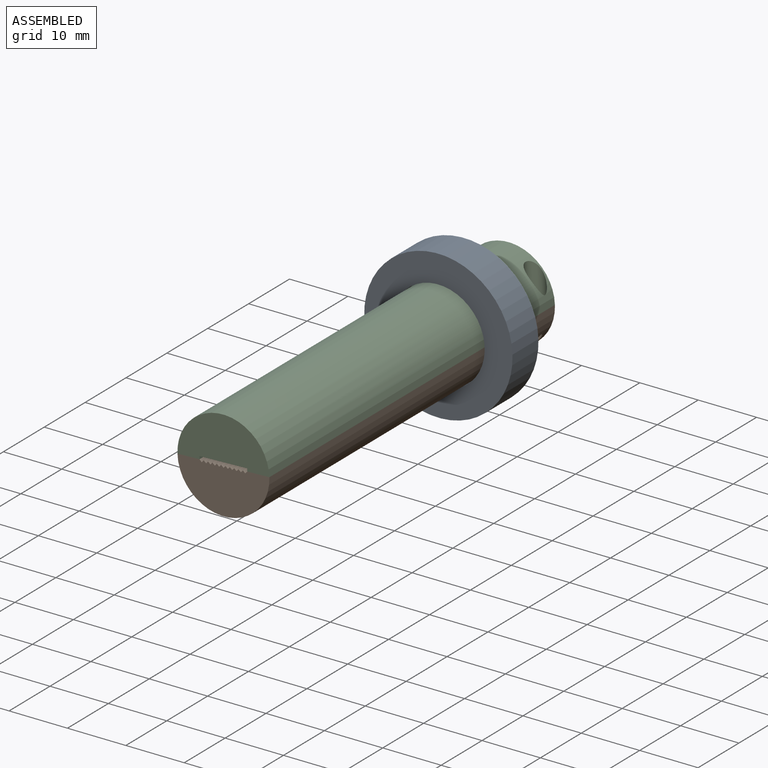
[diagram: assembled view]
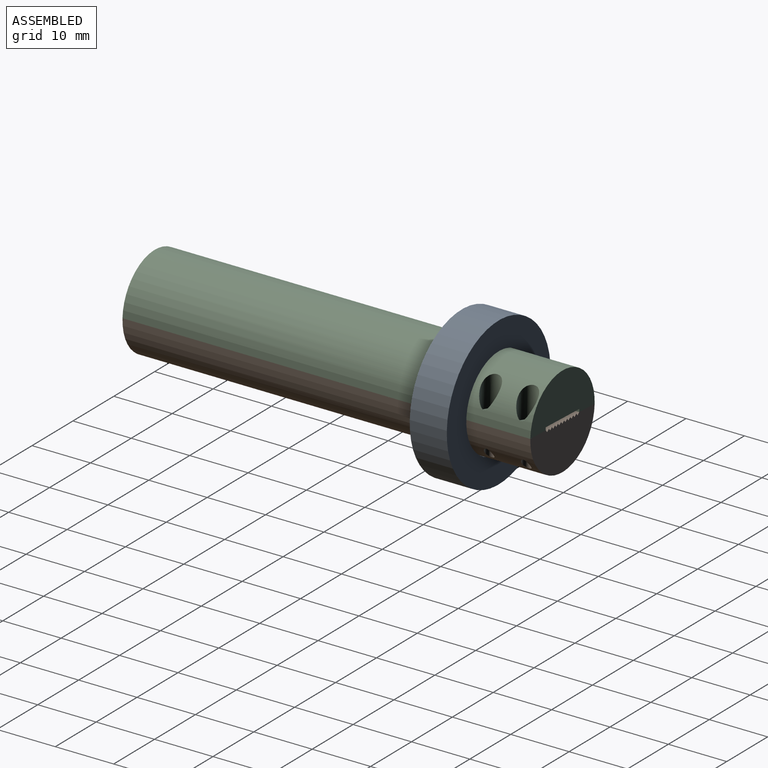
[diagram: assembled view, second angle]
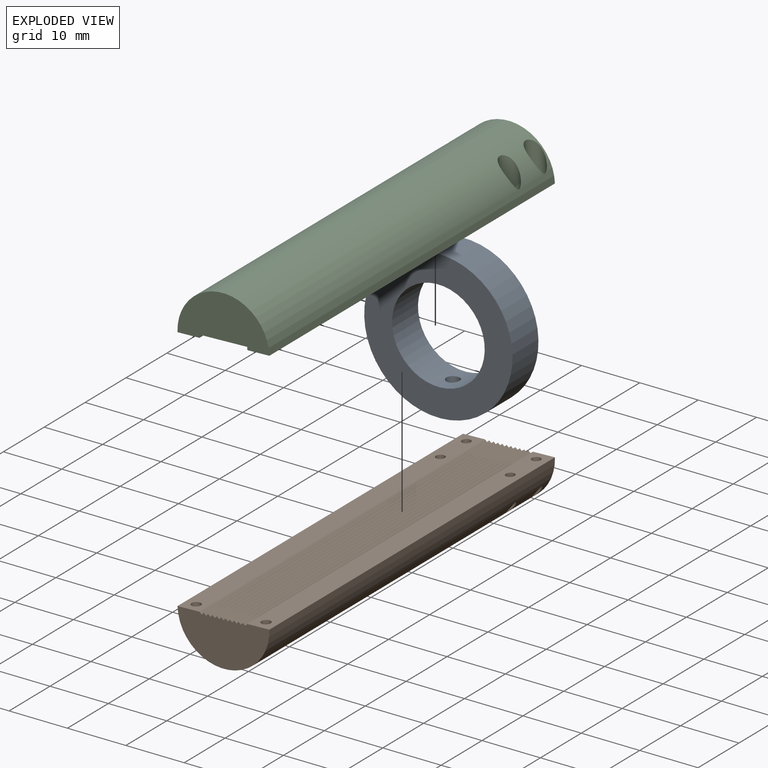
[diagram: exploded view]
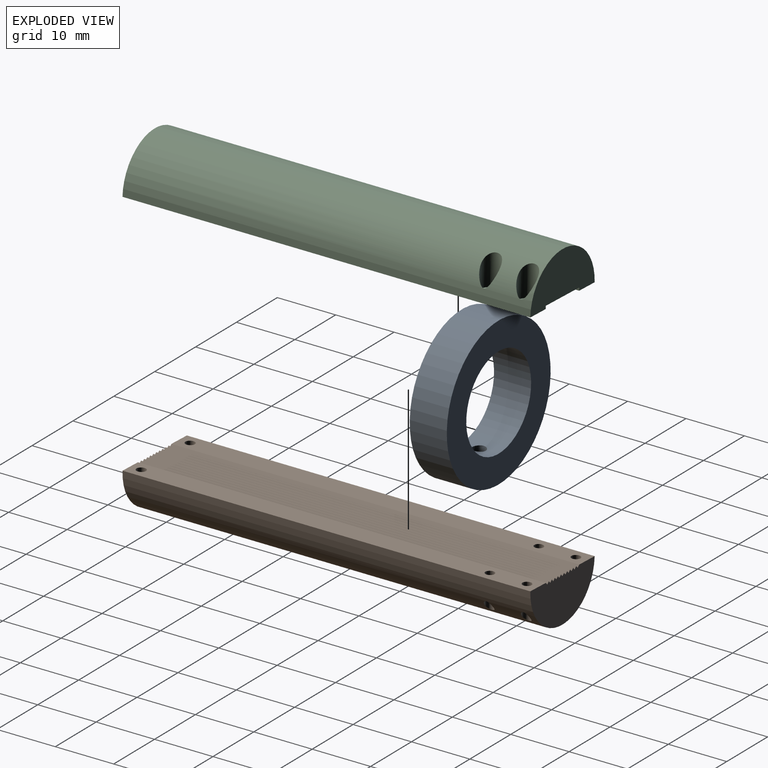
[diagram: exploded view, second angle]
ASSEMBLY  parts=3 mates=2
PART A: 5 faces, bbox 25.4x6.4x25.4 mm
  f0: cylinder r=7.94mm len=15.88mm, axis (0,1,0), area 312.7mm2, adj f2,f3,f4
  f1: cylinder r=12.7mm len=25.4mm, axis (0,1,0), area 502.7mm2, adj f2,f3,f4
  f2: plane 25.4x25.4mm, normal (0,-1,0), area 308.8mm2, adj f0,f1
  f3: plane 25.4x25.4mm, normal (0,1,0), area 308.8mm2, adj f0,f1
  f4: cylinder r=1.13mm len=4.84mm, axis (0,0,1), area 33.9mm2, adj f0,f1
PART B: 45 faces, bbox 7.9x69.9x15.7 mm
  f0: cylinder r=7.87mm len=69.85mm, axis (0,1,0), area 1716.6mm2, adj f10,f12,f13,f14,f37,f38,f39,f40
  f1: plane 69.85x0.01mm, normal (1,0,0), area 0.7mm2, adj f12,f14,f34,f35
  f2: plane 69.85x0.01mm, normal (1,0,0), area 0.7mm2, adj f12,f14,f24,f33
  f3: plane 69.85x0.01mm, normal (1,0,0), area 0.7mm2, adj f12,f14,f30,f31
  f4: plane 69.85x0.01mm, normal (1,0,0), area 0.7mm2, adj f12,f14,f29,f36
  f5: plane 69.85x0.01mm, normal (1,0,0), area 0.7mm2, adj f12,f14,f26,f27
  f6: plane 69.85x0.01mm, normal (1,0,0), area 0.7mm2, adj f12,f14,f16,f25
  f7: plane 69.85x0.01mm, normal (1,0,0), area 0.7mm2, adj f12,f14,f22,f23
  f8: plane 69.85x0.01mm, normal (1,0,0), area 0.7mm2, adj f12,f14,f21,f28
  f9: plane 69.85x0.01mm, normal (1,0,0), area 0.7mm2, adj f12,f14,f19,f32
  f10: plane 69.85x3.77mm, normal (1,0,0), area 258mm2, adj f0,f12,f14,f18,f37,f40,f43
  f11: plane 69.85x0.01mm, normal (1,0,0), area 0.7mm2, adj f12,f14,f15,f17
  f12: plane 15.75x7.87mm, normal (0,-1,0), area 95.9mm2, adj f0,f1,f2,f3,f4,f5,f6,f7
  f13: plane 69.85x3.78mm, normal (1,0,0), area 258.7mm2, adj f0,f12,f14,f20,f38,f39,f41
  f14: plane 15.75x7.87mm, normal (0,1,0), area 95.9mm2, adj f0,f1,f2,f3,f4,f5,f6,f7
  f15: plane 69.85x0.37mm, normal (0.71,0,-0.71), area 36.3mm2, adj f11,f12,f14,f16
  f16: plane 69.85x0.37mm, normal (0.71,0,0.71), area 36.3mm2, adj f6,f12,f14,f15
  f17: plane 69.85x0.37mm, normal (0.71,0,0.71), area 36.3mm2, adj f11,f12,f14,f18
  f18: plane 69.85x0.37mm, normal (0.71,0,-0.71), area 36.3mm2, adj f10,f12,f14,f17
  f19: plane 69.85x0.37mm, normal (0.71,0,-0.71), area 36.3mm2, adj f9,f12,f14,f20
  f20: plane 69.85x0.37mm, normal (0.71,0,0.71), area 36.3mm2, adj f12,f13,f14,f19
  f21: plane 69.85x0.37mm, normal (0.71,0,-0.71), area 36.3mm2, adj f8,f12,f14,f22
  f22: plane 69.85x0.37mm, normal (0.71,0,0.71), area 36.3mm2, adj f7,f12,f14,f21
  f23: plane 69.85x0.37mm, normal (0.71,0,-0.71), area 36.3mm2, adj f7,f12,f14,f24
  f24: plane 69.85x0.37mm, normal (0.71,0,0.71), area 36.3mm2, adj f2,f12,f14,f23
  f25: plane 69.85x0.37mm, normal (0.71,0,-0.71), area 36.3mm2, adj f6,f12,f14,f26
  f26: plane 69.85x0.37mm, normal (0.71,0,0.71), area 36.3mm2, adj f5,f12,f14,f25
  f27: plane 69.85x0.37mm, normal (0.71,0,-0.71), area 36.3mm2, adj f5,f12,f14,f28
  f28: plane 69.85x0.37mm, normal (0.71,0,0.71), area 36.3mm2, adj f8,f12,f14,f27
  f29: plane 69.85x0.37mm, normal (0.71,0,-0.71), area 36.3mm2, adj f4,f12,f14,f30
  f30: plane 69.85x0.37mm, normal (0.71,0,0.71), area 36.3mm2, adj f3,f12,f14,f29
  f31: plane 69.85x0.37mm, normal (0.71,0,-0.71), area 36.3mm2, adj f3,f12,f14,f32
  f32: plane 69.85x0.37mm, normal (0.71,0,0.71), area 36.3mm2, adj f9,f12,f14,f31
  f33: plane 69.85x0.37mm, normal (0.71,0,-0.71), area 36.3mm2, adj f2,f12,f14,f34
  f34: plane 69.85x0.37mm, normal (0.71,0,0.71), area 36.3mm2, adj f1,f12,f14,f33
  f35: plane 69.85x0.37mm, normal (0.71,0,-0.71), area 36.3mm2, adj f1,f12,f14,f36
  f36: plane 69.85x0.37mm, normal (0.71,0,0.71), area 36.3mm2, adj f4,f12,f14,f35
  f37: cylinder r=0.76mm len=5.89mm, axis (1,0,0), area 24mm2, adj f0,f10
  f38: cylinder r=0.76mm len=5.89mm, axis (1,0,0), area 24mm2, adj f0,f13
  f39: cylinder r=0.76mm len=5.89mm, axis (1,0,0), area 24mm2, adj f0,f13
  f40: cylinder r=0.76mm len=5.89mm, axis (1,0,0), area 24mm2, adj f0,f10
  f41: cylinder r=0.79mm len=1.78mm, axis (1,0,0), area 8.9mm2, adj f13,f42
  f42: plane 1.59x1.59mm, normal (1,0,0), area 2mm2, adj f41
  f43: cylinder r=0.79mm len=1.78mm, axis (1,0,0), area 8.9mm2, adj f10,f44
  f44: plane 1.59x1.59mm, normal (1,0,0), area 2mm2, adj f43
PART C: 24 faces, bbox 7.9x69.9x15.7 mm
  f0: cylinder r=7.87mm len=69.85mm, axis (0,1,0), area 1674.8mm2, adj f5,f6,f7,f8,f12,f14,f16,f18
  f1: cylinder r=0.97mm len=1.93mm, axis (-1,0,0), area 7mm2, adj f5,f19
  f2: cylinder r=0.97mm len=1.93mm, axis (-1,0,0), area 7mm2, adj f7,f17
  f3: cylinder r=0.97mm len=1.93mm, axis (-1,0,0), area 7mm2, adj f5,f15
  f4: cylinder r=0.97mm len=1.93mm, axis (-1,0,0), area 7mm2, adj f7,f13
  f5: plane 69.85x3.77mm, normal (-1,0,0), area 255.8mm2, adj f0,f1,f3,f6,f8,f9,f22
  f6: plane 15.75x7.87mm, normal (0,-1,0), area 93.3mm2, adj f0,f5,f7,f9,f10,f11
  f7: plane 69.85x3.77mm, normal (-1,0,0), area 255.8mm2, adj f0,f2,f4,f6,f8,f10,f20
  f8: plane 15.75x7.87mm, normal (0,1,0), area 93.3mm2, adj f0,f5,f7,f9,f10,f11
  f9: plane 69.85x0.49mm, normal (0,0,-1), area 34.5mm2, adj f5,f6,f8,f11
  f10: plane 69.85x0.49mm, normal (0,0,1), area 34.5mm2, adj f6,f7,f8,f11
  f11: plane 69.85x8.2mm, normal (-1,0,0), area 572.8mm2, adj f6,f8,f9,f10
  f12: cylinder r=1.59mm len=5.37mm, axis (1,0,0), area 35.9mm2, adj f0,f13
  f13: plane 3.18x3.18mm, normal (1,0,0), area 5mm2, adj f4,f12
  f14: cylinder r=1.59mm len=5.37mm, axis (1,0,0), area 35.9mm2, adj f0,f15
  f15: plane 3.18x3.18mm, normal (1,0,0), area 5mm2, adj f3,f14
  f16: cylinder r=1.59mm len=5.37mm, axis (1,0,0), area 35.9mm2, adj f0,f17
  f17: plane 3.18x3.18mm, normal (1,0,0), area 5mm2, adj f2,f16
  f18: cylinder r=1.59mm len=5.37mm, axis (1,0,0), area 35.9mm2, adj f0,f19
  f19: plane 3.18x3.18mm, normal (1,0,0), area 5mm2, adj f1,f18
  f20: cylinder r=0.79mm len=1.78mm, axis (-1,0,0), area 8.9mm2, adj f7,f21
  f21: plane 1.59x1.59mm, normal (-1,0,0), area 2mm2, adj f20
  f22: cylinder r=0.79mm len=1.78mm, axis (-1,0,0), area 8.9mm2, adj f5,f23
  f23: plane 1.59x1.59mm, normal (-1,0,0), area 2mm2, adj f22
PLACE A rot(axis=(0,-1,0),2deg) t=(37.62,92.4,61.93)mm
PLACE B rot(axis=(0,-1,0),92deg) t=(28.41,106.5,61.61)mm
PLACE C rot(axis=(0.69,0,0.72),180deg) t=(-11.95,36.65,60.18)mm
MATE revolute B.f40 <-> C.f2  axis (-0.04,0,1) through (-17.93,98.26,59.97)mm
MATE cylindrical C.f0 <-> A.f0  axis (0,-1,0) through (-11.95,36.65,60.18)mm
